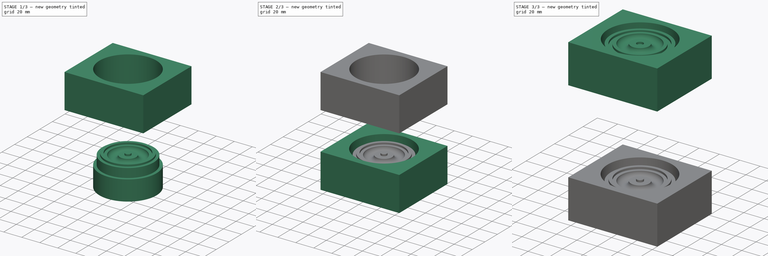
[diagram: build sequence overview — one tinted view per stage of 3, left to right]
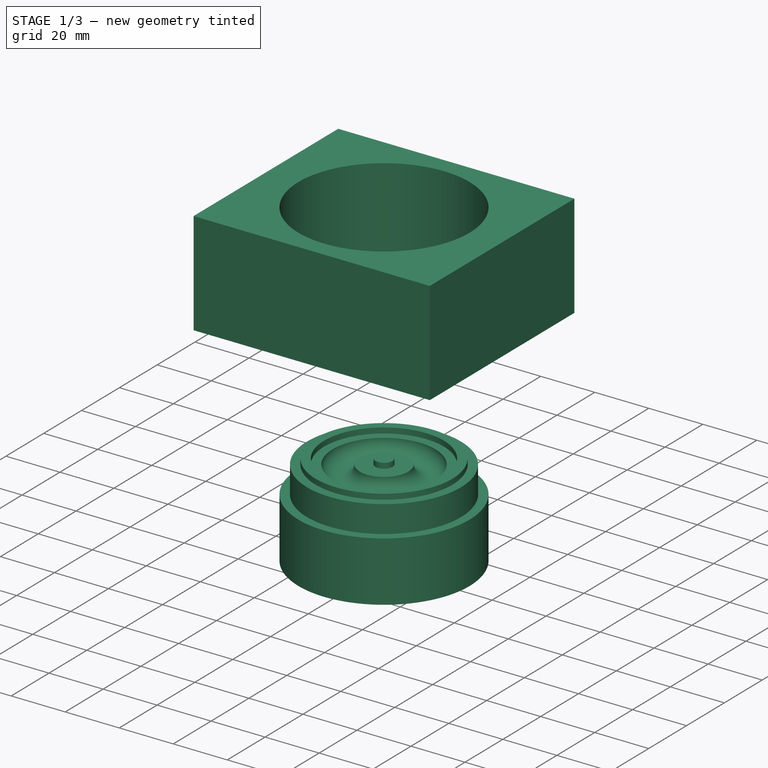
[diagram: stage 1 of 3 — iso view after this stage's code; geometry added in this stage tinted green]
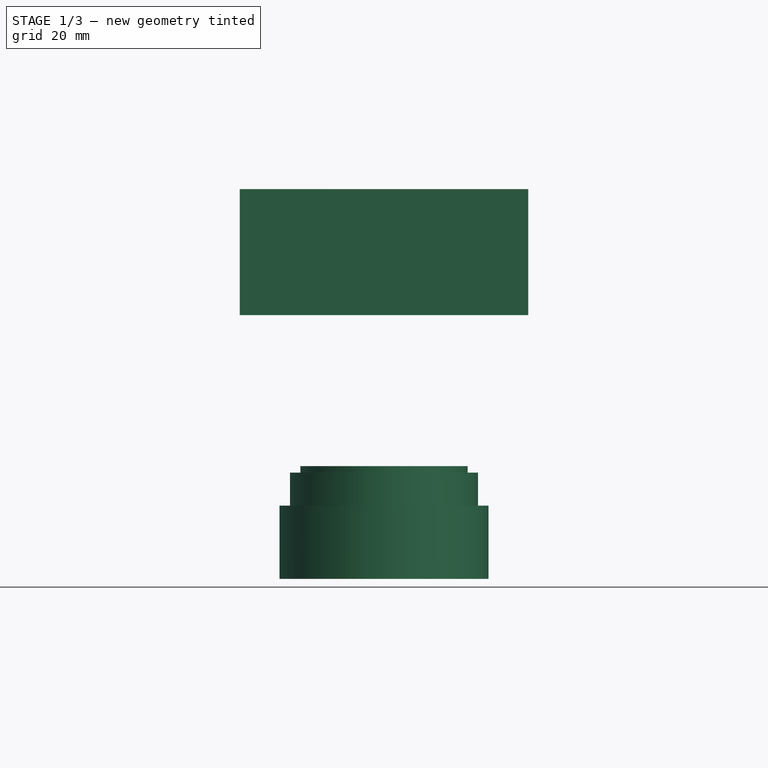
[diagram: stage 1 of 3 — front view after this stage's code; geometry added in this stage tinted green]
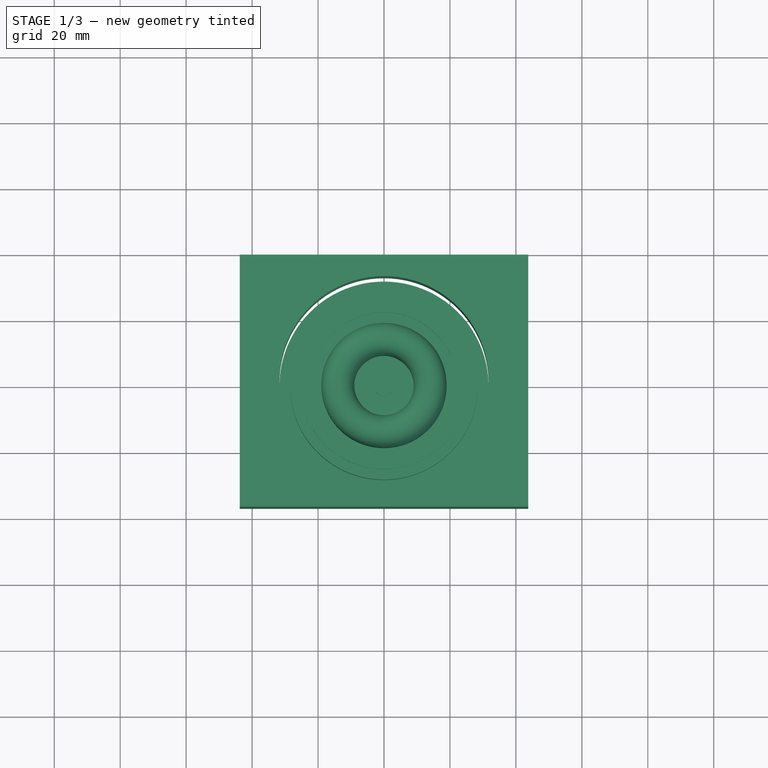
[diagram: stage 1 of 3 — top view after this stage's code; geometry added in this stage tinted green]
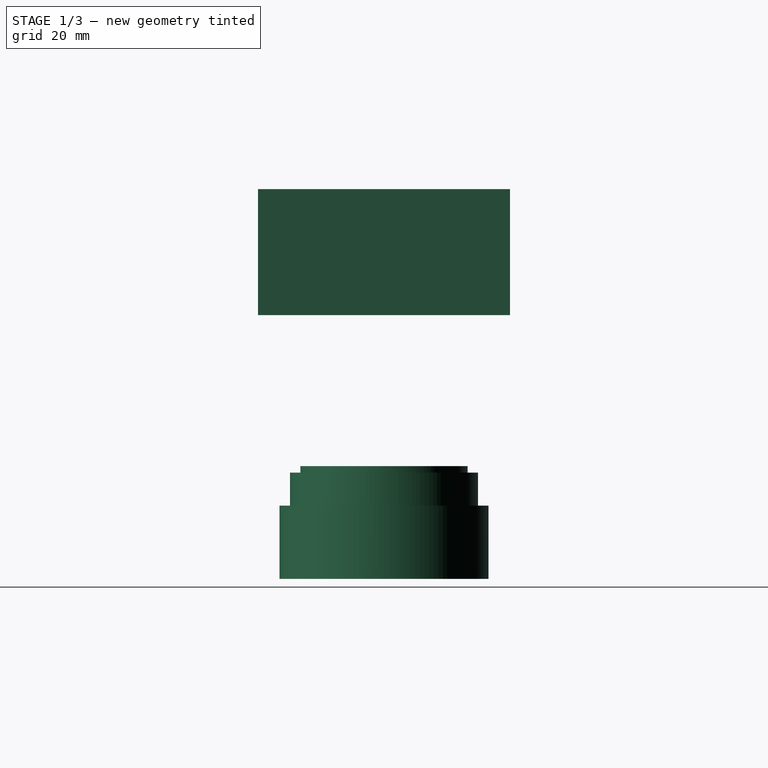
[diagram: stage 1 of 3 — right view after this stage's code; geometry added in this stage tinted green]
FCSTD DOCUMENT  (FreeCAD 1.0R39319 (Git))
Label: milling
License: All rights reserved
LicenseURL: https://en.wikipedia.org/wiki/All_rights_reserved
objects: Sketcher::SketchObject×4, PartDesign::Body×4, PartDesign::Revolution×2, PartDesign::Pad×2, PartDesign::Boolean×2, App::VarSet×1
note: 28 computed .brp shape members not serialized (recipe doc carries the construction recipe); baked Part::Feature solids carry a one-line shape summary decoded from their .brp

FEATURE [Sketcher::SketchObject] Sketch  label="male-sketch"
  ArcFitTolerance = 1e-06
  AttachmentSupport = -> [XZ_Plane]
  FullyConstrained = true
  MakeInternals = false
  MapMode = 5
  Placement = pos=(0,0,0) rot=(1,0,0;1.5708rad)
  expr: Constraints[20] = <<Dimensions>>.bit_width
  expr: Constraints[24] = <<Dimensions>>.wall_h
  expr: Constraints[26] = <<Dimensions>>.ball_d / 2
  expr: Constraints[27] = <<Dimensions>>.ball_d
  expr: Constraints[37] = <<Dimensions>>.bit_width
  expr: Constraints[39] = <<Dimensions>>.ring_radius
  expr: Constraints[40] = <<Dimensions>>.stock_thick - <<Dimensions>>.base_thickness - <<Dimensions>>.tab_h
  expr: Constraints[45] = <<Dimensions>>.tab_h
  expr: Constraints[47] = <<Dimensions>>.tab_h
  expr: Constraints[9] = <<Dimensions>>.bit_width
  sketch-geometry (16):
    g0: LineSegment StartX=0 StartY=-80 StartZ=0 EndX=31.7 EndY=-80 EndZ=0
    g1: LineSegment StartX=31.7 StartY=-80 StartZ=0 EndX=31.7 EndY=-57.79 EndZ=0
    g2: LineSegment StartX=0 StartY=-45.79 StartZ=0 EndX=0 EndY=-80 EndZ=0
    g3: LineSegment StartX=28.525 StartY=-47.79 StartZ=0 EndX=28.525 EndY=-57.79 EndZ=0
    g4: LineSegment StartX=28.525 StartY=-57.79 StartZ=0 EndX=31.7 EndY=-57.79 EndZ=0
    g5: LineSegment StartX=28.525 StartY=-47.79 StartZ=0 EndX=25.35 EndY=-47.79 EndZ=0
    g6: LineSegment StartX=25.35 StartY=-47.79 StartZ=0 EndX=25.35 EndY=-45.79 EndZ=0
    g7: LineSegment StartX=25.35 StartY=-45.79 StartZ=0 EndX=22.175 EndY=-45.79 EndZ=0
    g8: LineSegment StartX=22.175 StartY=-45.79 StartZ=0 EndX=22.175 EndY=-47.79 EndZ=0
    g9: LineSegment StartX=22.175 StartY=-47.79 StartZ=0 EndX=19 EndY=-47.79 EndZ=0
    g10: Circle [constr] CenterX=14 CenterY=-47.79 CenterZ=0 NormalX=0 NormalY=0 NormalZ=1 AngleXU=0 Radius=5
    g11: LineSegment [constr] StartX=19 StartY=-47.79 StartZ=0 EndX=9 EndY=-47.79 EndZ=0
    g12: LineSegment StartX=9 StartY=-47.79 StartZ=0 EndX=3.175 EndY=-47.79 EndZ=0
    g13: LineSegment StartX=0 StartY=-45.79 StartZ=0 EndX=3.175 EndY=-45.79 EndZ=0
    g14: LineSegment StartX=3.175 StartY=-45.79 StartZ=0 EndX=3.175 EndY=-47.79 EndZ=0
    g15: ArcOfCircle CenterX=14 CenterY=-47.79 CenterZ=0 NormalX=0 NormalY=0 NormalZ=1 AngleXU=0 Radius=5 StartAngle=3.14159 EndAngle=6.28319
  constraints (49):
    c: Coincident(g0,g1)
    c: Coincident(g2,g0)
    c: Horizontal(g0)
    c: Vertical(g1)
    c: Vertical(g2)
    c: PointOnObject(g0,g-2)
    c: Coincident(g3,g4)
    c: Vertical(g3)
    c: Horizontal(g4)
    c: DistanceX(g4,g4) = 3.175
    c: Coincident(g5,g3)
    c: Horizontal(g5)
    c: Coincident(g6,g5)
    c: Vertical(g6)
    c: Coincident(g7,g6)
    c: Horizontal(g7)
    c: Coincident(g8,g7)
    c: Vertical(g8)
    c: Coincident(g9,g8)
    c: Horizontal(g9)
    c: DistanceX(g5,g5) = 3.175
    c: Equal(g7,g5)
    c: Equal(g9,g7)
    c: Coincident(g4,g1)
    c: DistanceY(g3,g3) = 10
    c: PointOnObject(g10,g9)
    c: DistanceX(g10,g9) = 5
    c: Diameter(g10) = 10
    c: Coincident(g11,g9)
    c: PointOnObject(g11,g10)
    c: Horizontal(g11)
    c: Coincident(g12,g11)
    c: Horizontal(g12)
    c: Coincident(g13,g2)
    c: Horizontal(g13)
    c: Coincident(g14,g13)
    c: Coincident(g14,g12)
    c: DistanceX(g13,g13) = 3.175
    c: Parallel(g14,g-2)
    c: Distance(g10,g-2) = 14
    c: Distance(g0,g12) = 32.21
    c: Coincident(g15,g10)
    c: Coincident(g15,g9)
    c: PointOnObject(g15,g12)
    c: DistanceX(g12,g12) = 5.825
    c: DistanceY(g8,g8) = 2
    c: Equal(g6,g8)
    c: Distance(g13,g12) = 2
    c: Distance(g-1,g0) = 80
FEATURE [App::VarSet] VarSet  label="Dimensions"
  ball_d = 10
  base_thickness = 4
  bit_width = 3.175
  mold_h = 20
  ring_radius = 14
  stock_long = 87.46
  stock_short = 76.45
  stock_thick = 38.21
  tab_h = 2
  wall_h = 10
FEATURE [PartDesign::Revolution] Revolution001
  Angle = 360
  Angle2 = 60
  Axis = (0,2e-16,1)
  Base = (0,0,0)
  Placement = pos=(0,0,0) rot=(1,0,0;1.5708rad)
  Profile = -> Sketch
  ReferenceAxis = -> Sketch [V_Axis]
  Refine = true
  Reversed = true
  Suppressed = false
  Type = 0
FEATURE [PartDesign::Body] Body001  label="female-part"
  AllowCompound = false
  Group = -> [Sketch002,Revolution002,Boolean]
  Origin = -> Origin001
  Tip = -> Boolean
FEATURE [Sketcher::SketchObject] Sketch004
  ArcFitTolerance = 1e-06
  AttachmentSupport = -> [XY_Plane002]
  FullyConstrained = true
  MakeInternals = false
  MapMode = 5
  expr: Constraints[12] = <<Dimensions>>.stock_long
  expr: Constraints[13] = <<Dimensions>>.stock_short
  expr: Constraints[1] = (<<Dimensions>>.ring_radius + <<Dimensions>>.ball_d / 2 + <<Dimensions>>.bit_width * 4) * 2
  sketch-geometry (6):
    g0: Circle CenterX=0 CenterY=0 CenterZ=0 NormalX=0 NormalY=0 NormalZ=1 AngleXU=0 Radius=31.7
    g1: LineSegment StartX=43.73 StartY=-38.225 StartZ=0 EndX=43.73 EndY=38.225 EndZ=0
    g2: LineSegment StartX=43.73 StartY=38.225 StartZ=0 EndX=-43.73 EndY=38.225 EndZ=0
    g3: LineSegment StartX=-43.73 StartY=38.225 StartZ=0 EndX=-43.73 EndY=-38.225 EndZ=0
    g4: LineSegment StartX=-43.73 StartY=-38.225 StartZ=0 EndX=43.73 EndY=-38.225 EndZ=0
    g5: GeomPoint [constr] X=0 Y=0 Z=0
  constraints (14):
    c: Coincident(g0,g-1)
    c: Diameter(g0) = 63.4
    c: Coincident(g1,g2)
    c: Coincident(g2,g3)
    c: Coincident(g3,g4)
    c: Coincident(g4,g1)
    c: Vertical(g1)
    c: Vertical(g3)
    c: Horizontal(g2)
    c: Horizontal(g4)
    c: Symmetric(g3,g1,g5)
    c: Coincident(g5,g0)
    c: DistanceX(g4,g4) = 87.46
    c: DistanceY(g1,g1) = 76.45
FEATURE [PartDesign::Pad] Pad001
  Direction = (0,0,1)
  Length = 38.21
  Length2 = 10
  Profile = -> Sketch004
  ReferenceAxis = -> Sketch004 [N_Axis]
  Refine = true
  Suppressed = false
  Type = 0
  expr: Length = <<Dimensions>>.stock_thick
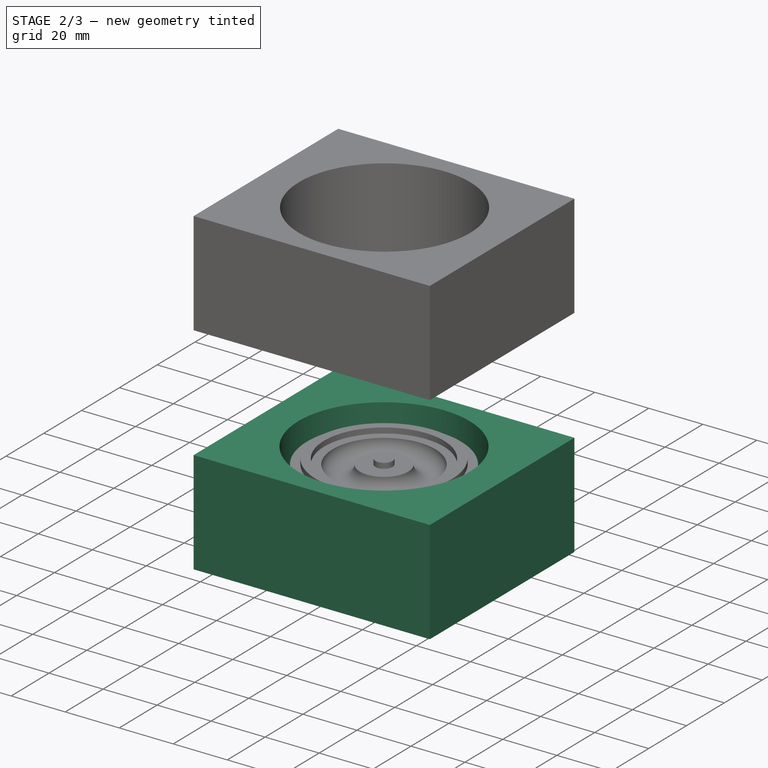
[diagram: stage 2 of 3 — iso view after this stage's code; geometry added in this stage tinted green]
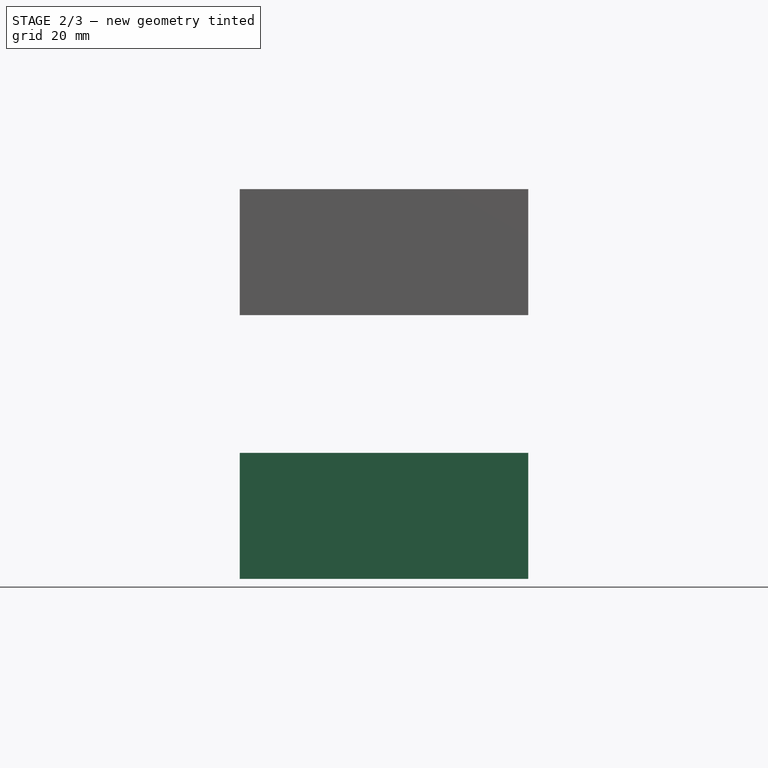
[diagram: stage 2 of 3 — front view after this stage's code; geometry added in this stage tinted green]
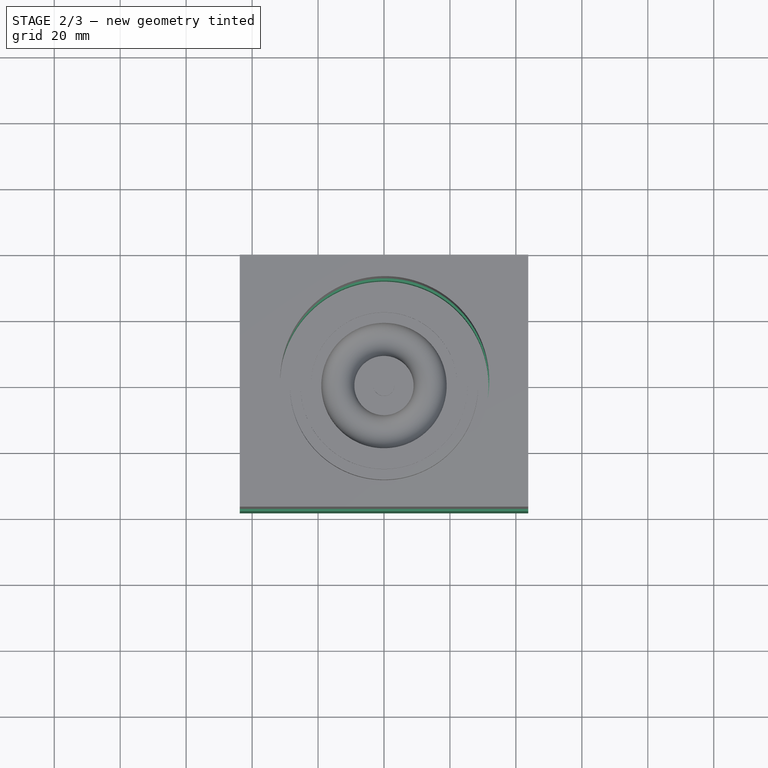
[diagram: stage 2 of 3 — top view after this stage's code; geometry added in this stage tinted green]
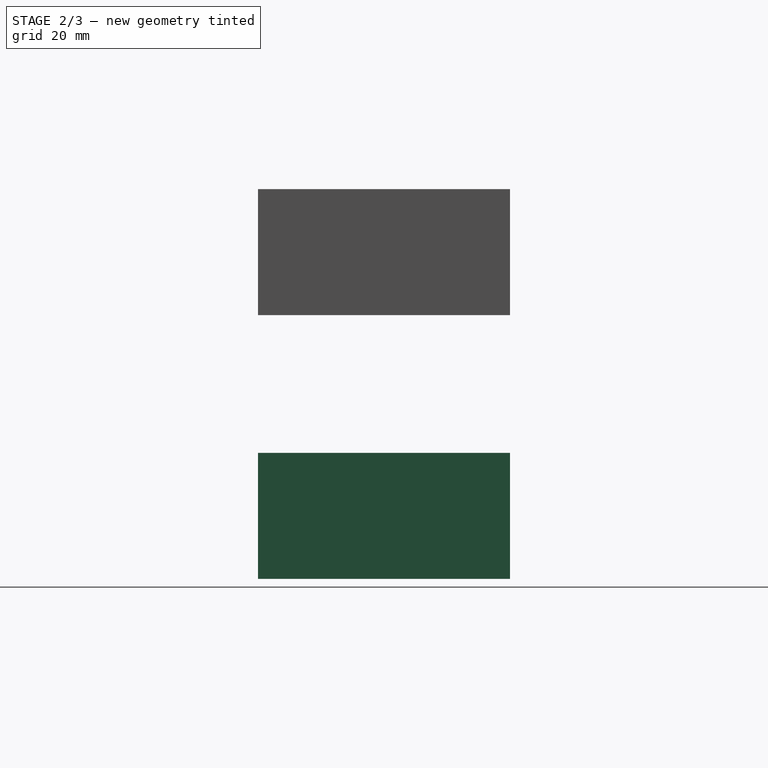
[diagram: stage 2 of 3 — right view after this stage's code; geometry added in this stage tinted green]
FEATURE [Sketcher::SketchObject] Sketch003
  ArcFitTolerance = 1e-06
  AttachmentSupport = -> [XY_Plane001]
  FullyConstrained = false
  MakeInternals = false
  MapMode = 5
  expr: Constraints[11] = (<<Dimensions>>.ring_radius + <<Dimensions>>.ball_d / 2 + 4 * <<Dimensions>>.bit_width) * 2
  expr: Constraints[12] = <<Dimensions>>.stock_long
  expr: Constraints[13] = <<Dimensions>>.stock_short
  sketch-geometry (6):
    g0: LineSegment StartX=43.73 StartY=-38.225 StartZ=0 EndX=43.73 EndY=38.225 EndZ=0
    g1: LineSegment StartX=43.73 StartY=38.225 StartZ=0 EndX=-43.73 EndY=38.225 EndZ=0
    g2: LineSegment StartX=-43.73 StartY=38.225 StartZ=0 EndX=-43.73 EndY=-38.225 EndZ=0
    g3: LineSegment StartX=-43.73 StartY=-38.225 StartZ=0 EndX=43.73 EndY=-38.225 EndZ=0
    g4: GeomPoint [constr] X=0 Y=0 Z=0
    g5: Circle CenterX=0.217197 CenterY=0 CenterZ=0 NormalX=0 NormalY=0 NormalZ=1 AngleXU=0 Radius=31.7
  constraints (14):
    c: Coincident(g0,g1)
    c: Coincident(g1,g2)
    c: Coincident(g2,g3)
    c: Coincident(g3,g0)
    c: Vertical(g0)
    c: Vertical(g2)
    c: Horizontal(g1)
    c: Horizontal(g3)
    c: Symmetric(g2,g0,g4)
    c: Coincident(g4,g-1)
    c: PointOnObject(g5,g-1)
    c: Diameter(g5) = 63.4
    c: DistanceX(g1,g1) = 87.46
    c: DistanceY(g0,g0) = 76.45
FEATURE [PartDesign::Pad] Pad
  Direction = (0,0,1)
  Length = 38.21
  Length2 = 10
  Profile = -> Sketch003
  ReferenceAxis = -> Sketch003 [N_Axis]
  Refine = true
  Suppressed = false
  Type = 0
  expr: Length = <<Dimensions>>.stock_thick
FEATURE [PartDesign::Body] Body003  label="male-shell"
  AllowCompound = false
  Group = -> [Sketch004,Pad001]
  Origin = -> Origin003
  Placement = pos=(0,0,-80) rot=(0,0,1;0rad)
  Tip = -> Pad001
FEATURE [PartDesign::Boolean] Boolean001
  BaseFeature = -> Revolution001
  Group = -> [Body003]
  Refine = true
  Suppressed = false
  Type = 0
  UsePlacement = true
FEATURE [PartDesign::Body] Body  label="male-part"
  AllowCompound = false
  Group = -> [Sketch,Revolution001,Boolean001]
  Origin = -> Origin
  Placement = pos=(100,0,120) rot=(0,0,1;0rad)
  Tip = -> Boolean001
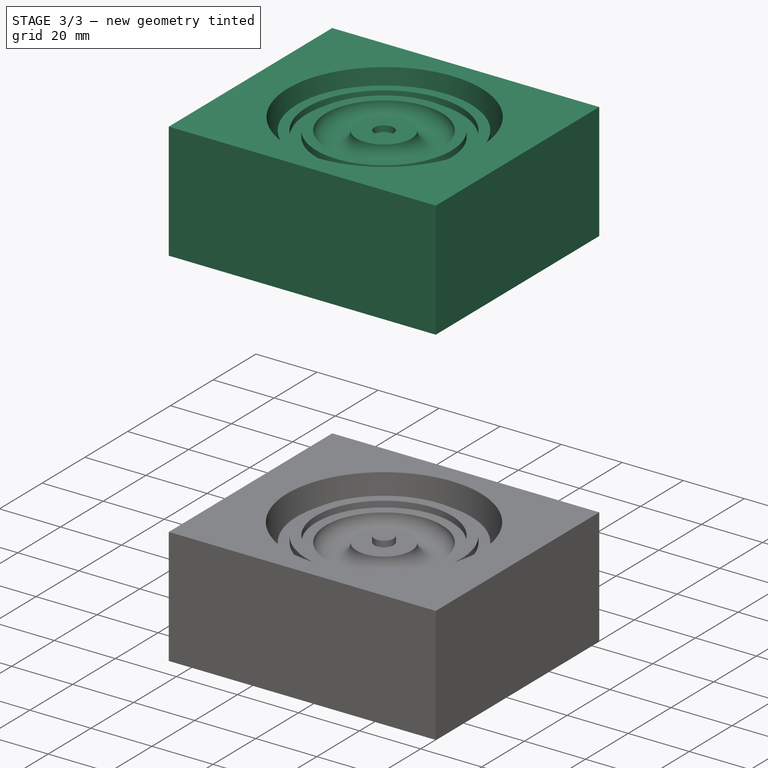
[diagram: stage 3 of 3 — iso view after this stage's code; geometry added in this stage tinted green]
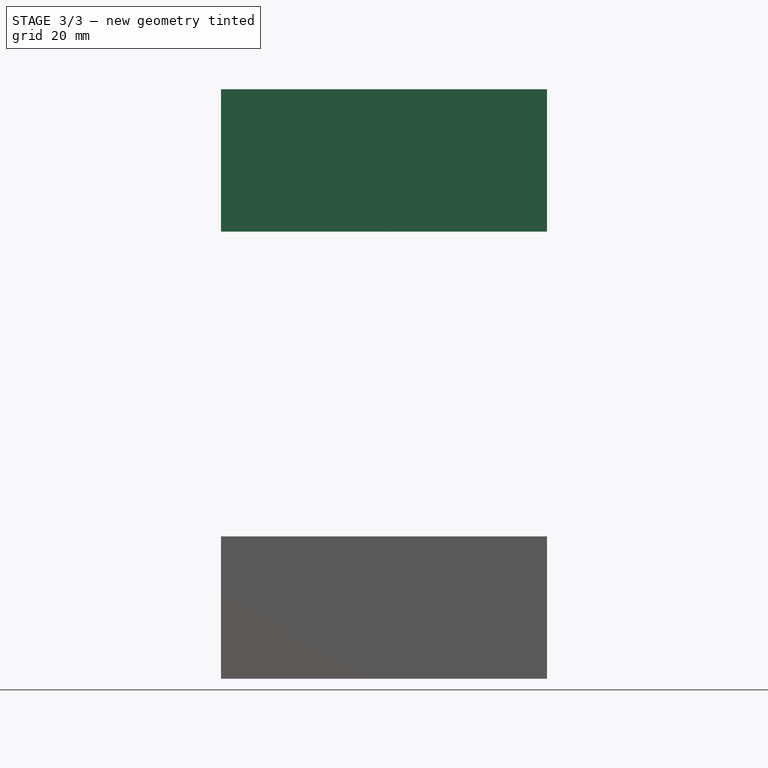
[diagram: stage 3 of 3 — front view after this stage's code; geometry added in this stage tinted green]
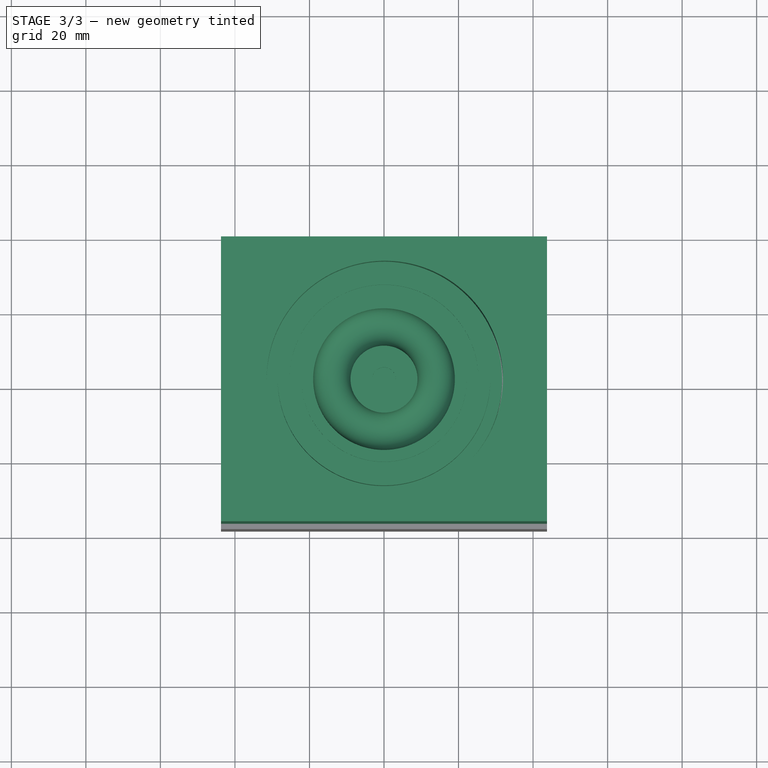
[diagram: stage 3 of 3 — top view after this stage's code; geometry added in this stage tinted green]
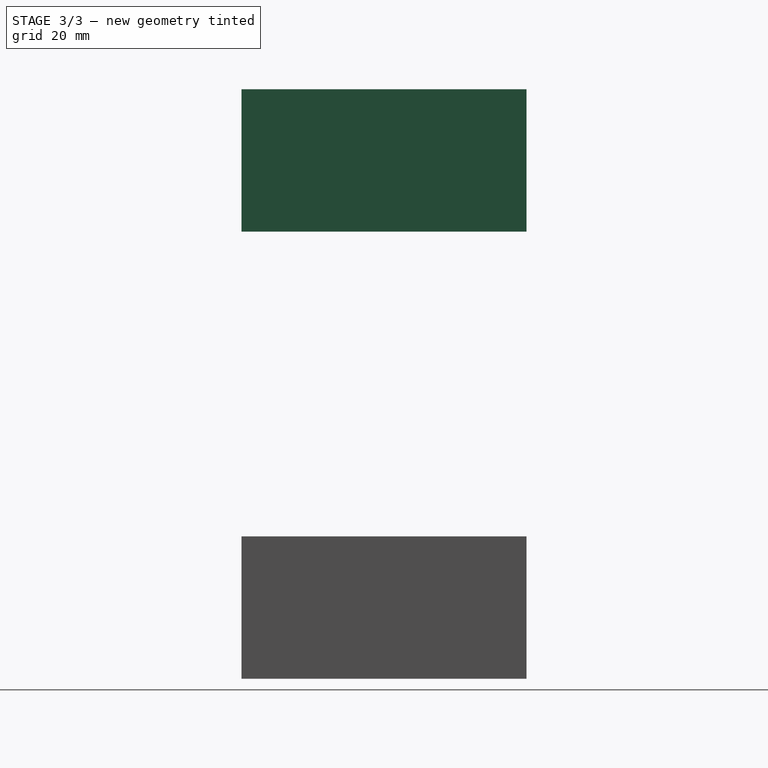
[diagram: stage 3 of 3 — right view after this stage's code; geometry added in this stage tinted green]
FEATURE [Sketcher::SketchObject] Sketch002  label="female-sketch"
  ArcFitTolerance = 1e-06
  AttachmentSupport = -> [XZ_Plane]
  FullyConstrained = true
  MakeInternals = false
  MapMode = 5
  Placement = pos=(0,0,0) rot=(1,0,0;1.5708rad)
  expr: Constraints[43] = <<Dimensions>>.stock_thick - <<Dimensions>>.base_thickness
  sketch-geometry (16):
    g0: LineSegment StartX=0 StartY=40 StartZ=0 EndX=31.7 EndY=40 EndZ=0
    g1: LineSegment StartX=31.7 StartY=40 StartZ=0 EndX=31.7 EndY=64.21 EndZ=0
    g2: LineSegment StartX=0 StartY=72.21 StartZ=0 EndX=0 EndY=40 EndZ=0
    g3: LineSegment StartX=28.525 StartY=74.21 StartZ=0 EndX=28.525 EndY=64.21 EndZ=0
    g4: LineSegment StartX=28.525 StartY=64.21 StartZ=0 EndX=31.7 EndY=64.21 EndZ=0
    g5: LineSegment StartX=28.525 StartY=74.21 StartZ=0 EndX=25.35 EndY=74.21 EndZ=0
    g6: LineSegment StartX=25.35 StartY=74.21 StartZ=0 EndX=25.35 EndY=72.21 EndZ=0
    g7: LineSegment StartX=25.35 StartY=72.21 StartZ=0 EndX=22.175 EndY=72.21 EndZ=0
    g8: LineSegment StartX=22.175 StartY=72.21 StartZ=0 EndX=22.175 EndY=74.21 EndZ=0
    g9: LineSegment StartX=22.175 StartY=74.21 StartZ=0 EndX=19 EndY=74.21 EndZ=0
    g10: Circle [constr] CenterX=14 CenterY=74.21 CenterZ=0 NormalX=0 NormalY=0 NormalZ=1 AngleXU=0 Radius=5
    g11: LineSegment [constr] StartX=19 StartY=74.21 StartZ=0 EndX=9 EndY=74.21 EndZ=0
    g12: LineSegment StartX=9 StartY=74.21 StartZ=0 EndX=3.175 EndY=74.21 EndZ=0
    g13: LineSegment StartX=0 StartY=72.21 StartZ=0 EndX=3.175 EndY=72.21 EndZ=0
    g14: LineSegment StartX=3.175 StartY=72.21 StartZ=0 EndX=3.175 EndY=74.21 EndZ=0
    g15: ArcOfCircle CenterX=14 CenterY=74.21 CenterZ=0 NormalX=0 NormalY=0 NormalZ=1 AngleXU=0 Radius=5 StartAngle=3.14159 EndAngle=6.28319
  constraints (48):
    c: Coincident(g0,g1)
    c: Coincident(g2,g0)
    c: Horizontal(g0)
    c: Vertical(g1)
    c: Vertical(g2)
    c: PointOnObject(g0,g-2)
    c: Coincident(g3,g4)
    c: Vertical(g3)
    c: Horizontal(g4)
    c: DistanceX(g4,g4) = 3.175
    c: Coincident(g5,g3)
    c: Horizontal(g5)
    c: Coincident(g6,g5)
    c: Vertical(g6)
    c: Coincident(g7,g6)
    c: Horizontal(g7)
    c: Coincident(g8,g7)
    c: Vertical(g8)
    c: Coincident(g9,g8)
    c: Horizontal(g9)
    c: DistanceX(g5,g5) = 3.175
    c: Equal(g7,g5)
    c: Equal(g9,g7)
    c: Coincident(g4,g1)
    c: DistanceY(g6,g6) = 2
    c: DistanceY(g8,g8) = 2
    c: DistanceY(g3,g3) = 10
    c: PointOnObject(g10,g9)
    c: DistanceX(g10,g9) = 5
    c: Diameter(g10) = 10
    c: Coincident(g11,g9)
    c: PointOnObject(g11,g10)
    c: Horizontal(g11)
    c: Coincident(g12,g11)
    c: Horizontal(g12)
    c: Coincident(g13,g2)
    c: Horizontal(g13)
    c: Coincident(g14,g13)
    c: Coincident(g14,g12)
    c: DistanceX(g13,g13) = 3.175
    c: DistanceY(g14,g14) = 2
    c: Parallel(g14,g-2)
    c: Distance(g10,g-2) = 14
    c: Distance(g0,g12) = 34.21
    c: Coincident(g15,g10)
    c: Coincident(g15,g9)
    c: PointOnObject(g15,g12)
    c: Distance(g-1,g0) = 40
FEATURE [PartDesign::Revolution] Revolution002
  Angle = 360
  Angle2 = 60
  Axis = (0,2e-16,1)
  Base = (0,0,0)
  Placement = pos=(0,0,0) rot=(1,0,0;1.5708rad)
  Profile = -> Sketch002
  ReferenceAxis = -> Sketch002 [V_Axis]
  Refine = true
  Reversed = true
  Suppressed = false
  Type = 0
FEATURE [PartDesign::Body] Body002  label="female-shell"
  AllowCompound = false
  Group = -> [Sketch003,Pad]
  Origin = -> Origin002
  Placement = pos=(0,0,40) rot=(0,0,1;0rad)
  Tip = -> Pad
FEATURE [PartDesign::Boolean] Boolean
  BaseFeature = -> Revolution002
  Group = -> [Body002]
  Refine = true
  Suppressed = false
  Type = 0
  UsePlacement = true
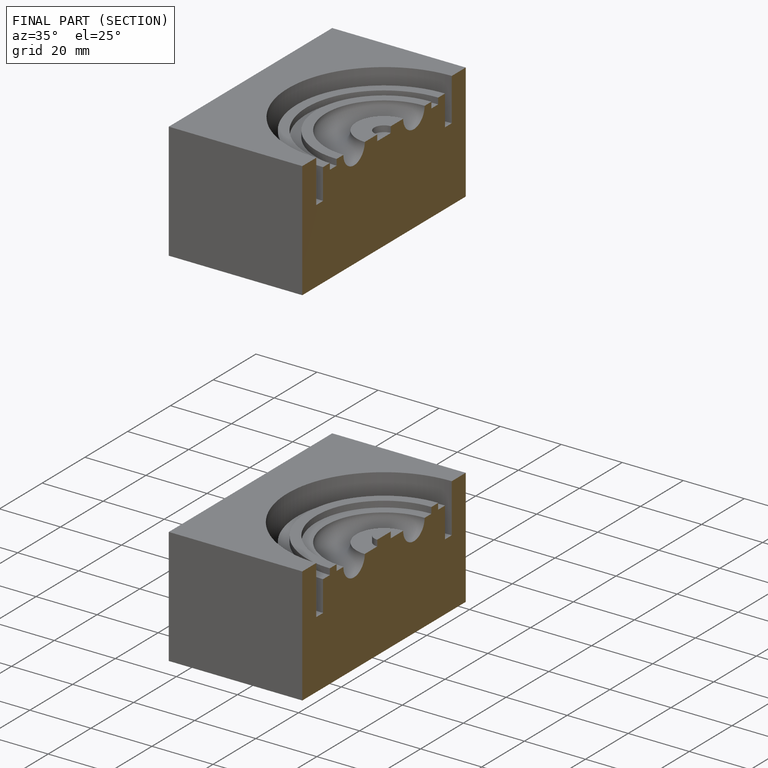
[diagram: finished part — half-section view (interior)]
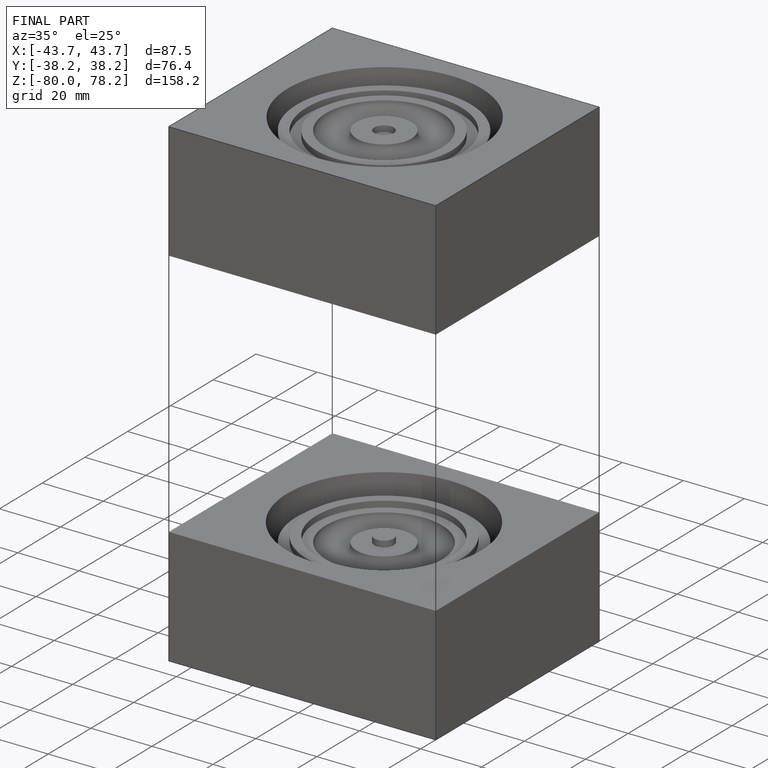
[diagram: finished part — iso view with bounding-box wireframe]
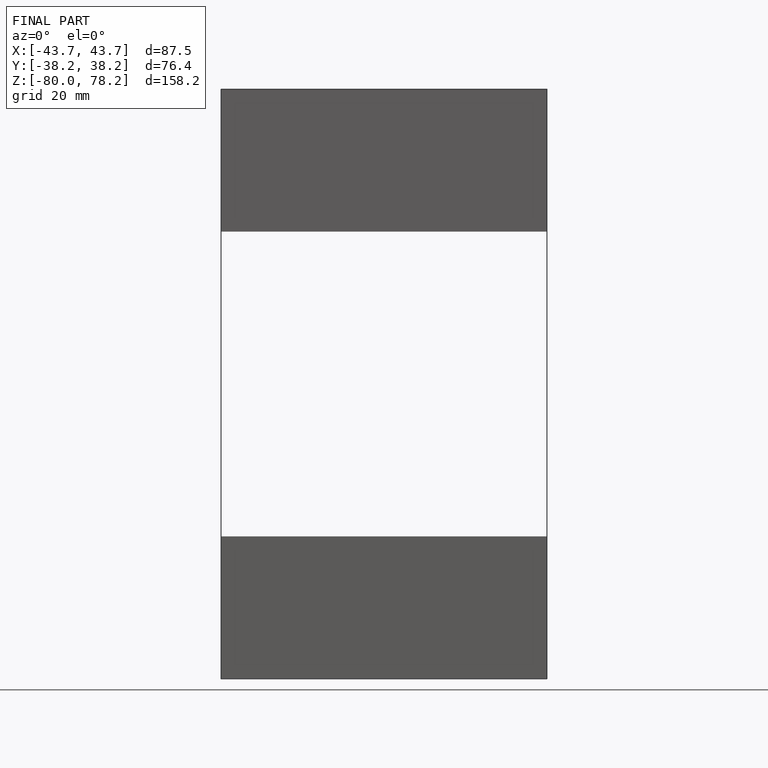
[diagram: finished part — front view with bounding-box wireframe]
